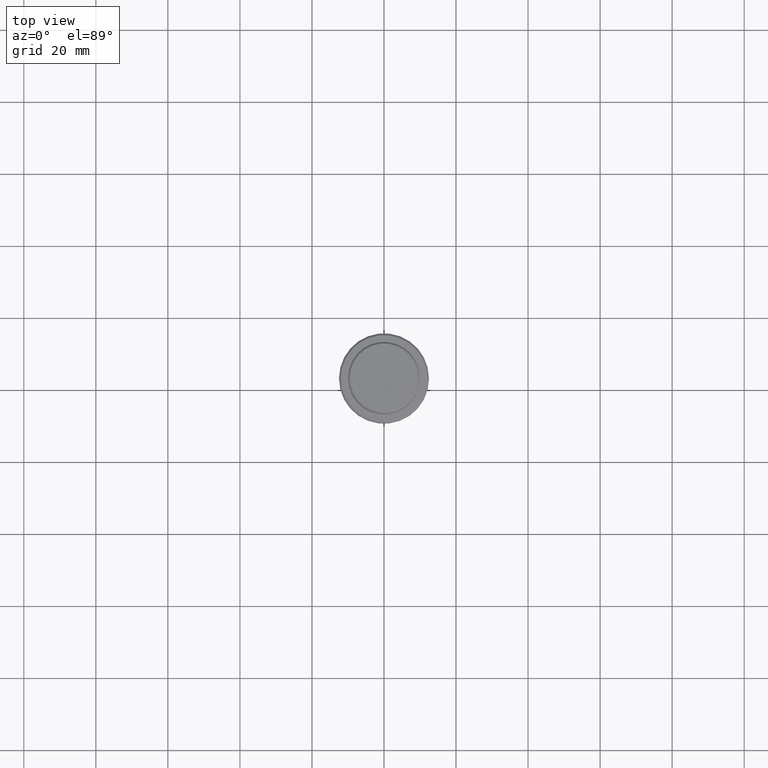
[diagram: clean part render]
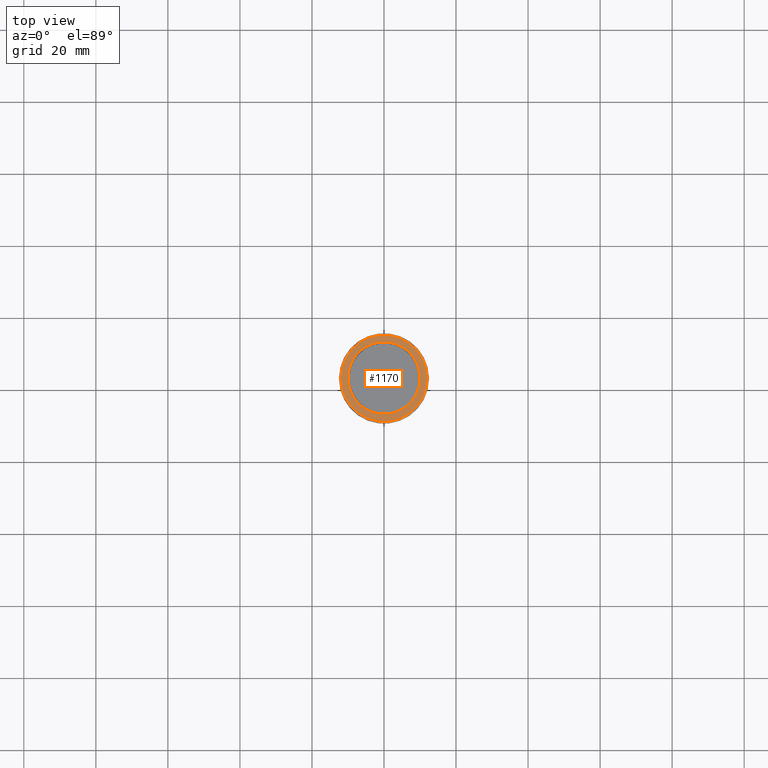
[diagram: same view with one face highlighted and labeled with its STEP entity id]
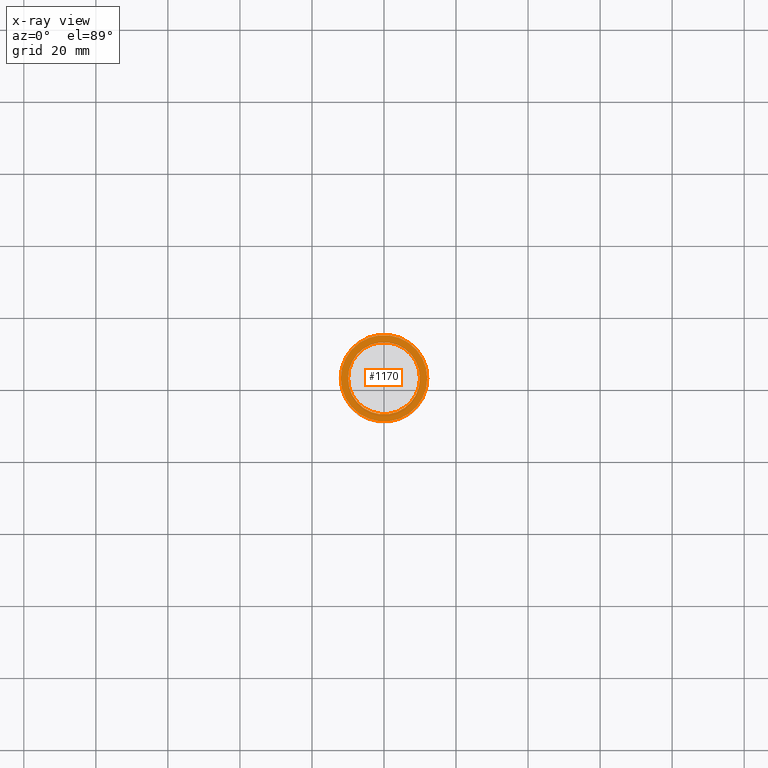
[diagram: x-ray of the same camera — body ghosted, the highlighted face saturated]
A machine part, top view. The second image highlights one B-rep face of the part: STEP entity #1170.
The next image is the same camera in x-ray: the body ghosted, the highlighted face saturated — about 0% of this face is hidden behind the body in this view.
In plain terms, the highlighted planar face has unit normal (0, -0, 1).
Its self-contained STEP definition (entity closure, byte-faithful):
#39 = CARTESIAN_POINT ( 'NONE',  ( 0.000000000000000000, 9.499999999999992895, -9.000000000000000000 ) ) ;
#127 = CARTESIAN_POINT ( 'NONE',  ( 0.000000000000000000, 0.000000000000000000, -9.000000000000000000 ) ) ;
#158 = VERTEX_POINT ( 'NONE', #405 ) ;
#195 = CARTESIAN_POINT ( 'NONE',  ( 9.999999999999992895, 0.000000000000000000, -9.000000000000000000 ) ) ;
#203 = CARTESIAN_POINT ( 'NONE',  ( -9.999999999999992895, 1.224646799147352468E-15, -9.000000000000000000 ) ) ;
#222 = ORIENTED_EDGE ( 'NONE', *, *, #1243, .T. ) ;
#307 = EDGE_LOOP ( 'NONE', ( #222, #1052 ) ) ;
#317 = CIRCLE ( 'NONE', #1378, 12.00000000000001066 ) ;
#330 = DIRECTION ( 'NONE',  ( 1.000000000000000000, 0.000000000000000000, 0.000000000000000000 ) ) ;
#364 = DIRECTION ( 'NONE',  ( -0.000000000000000000, -0.000000000000000000, 1.000000000000000000 ) ) ;
#404 = CARTESIAN_POINT ( 'NONE',  ( -12.00000000000001066, 0.000000000000000000, -9.000000000000000000 ) ) ;
#405 = CARTESIAN_POINT ( 'NONE',  ( 12.00000000000001066, 1.500192328955508326E-15, -9.000000000000000000 ) ) ;
#432 = ORIENTED_EDGE ( 'NONE', *, *, #791, .T. ) ;
#483 = DIRECTION ( 'NONE',  ( 0.000000000000000000, -0.000000000000000000, 1.000000000000000000 ) ) ;
#568 = VERTEX_POINT ( 'NONE', #195 ) ;
#588 = DIRECTION ( 'NONE',  ( 0.000000000000000000, 0.000000000000000000, -1.000000000000000000 ) ) ;
#589 = FACE_OUTER_BOUND ( 'NONE', #1245, .T. ) ;
#632 = EDGE_CURVE ( 'NONE', #158, #796, #317, .T. ) ;
#721 = PLANE ( 'NONE',  #1082 ) ;
#782 = DIRECTION ( 'NONE',  ( 0.000000000000000000, 0.000000000000000000, -1.000000000000000000 ) ) ;
#791 = EDGE_CURVE ( 'NONE', #796, #158, #1240, .T. ) ;
#794 = AXIS2_PLACEMENT_3D ( 'NONE', #916, #588, #831 ) ;
#796 = VERTEX_POINT ( 'NONE', #404 ) ;
#814 = AXIS2_PLACEMENT_3D ( 'NONE', #957, #848, #1414 ) ;
#825 = FACE_BOUND ( 'NONE', #307, .T. ) ;
#831 = DIRECTION ( 'NONE',  ( 1.000000000000000000, 0.000000000000000000, 0.000000000000000000 ) ) ;
#833 = CARTESIAN_POINT ( 'NONE',  ( 0.000000000000000000, 0.000000000000000000, -9.000000000000000000 ) ) ;
#848 = DIRECTION ( 'NONE',  ( -0.000000000000000000, -0.000000000000000000, 1.000000000000000000 ) ) ;
#916 = CARTESIAN_POINT ( 'NONE',  ( 0.000000000000000000, 0.000000000000000000, -9.000000000000000000 ) ) ;
#919 = ORIENTED_EDGE ( 'NONE', *, *, #632, .T. ) ;
#923 = DIRECTION ( 'NONE',  ( 1.000000000000000000, 0.000000000000000000, 0.000000000000000000 ) ) ;
#947 = EDGE_CURVE ( 'NONE', #1230, #568, #1014, .T. ) ;
#957 = CARTESIAN_POINT ( 'NONE',  ( 0.000000000000000000, 0.000000000000000000, -9.000000000000000000 ) ) ;
#979 = AXIS2_PLACEMENT_3D ( 'NONE', #127, #782, #330 ) ;
#1014 = CIRCLE ( 'NONE', #794, 9.999999999999992895 ) ;
#1052 = ORIENTED_EDGE ( 'NONE', *, *, #947, .T. ) ;
#1059 = CIRCLE ( 'NONE', #979, 9.999999999999992895 ) ;
#1082 = AXIS2_PLACEMENT_3D ( 'NONE', #39, #483, #923 ) ;
#1170 = ADVANCED_FACE ( 'NONE', ( #589, #825 ), #721, .T. ) ;
#1230 = VERTEX_POINT ( 'NONE', #203 ) ;
#1240 = CIRCLE ( 'NONE', #814, 12.00000000000001066 ) ;
#1243 = EDGE_CURVE ( 'NONE', #568, #1230, #1059, .T. ) ;
#1245 = EDGE_LOOP ( 'NONE', ( #432, #919 ) ) ;
#1260 = DIRECTION ( 'NONE',  ( 1.000000000000000000, 0.000000000000000000, 0.000000000000000000 ) ) ;
#1378 = AXIS2_PLACEMENT_3D ( 'NONE', #833, #364, #1260 ) ;
#1414 = DIRECTION ( 'NONE',  ( 1.000000000000000000, 0.000000000000000000, 0.000000000000000000 ) ) ;